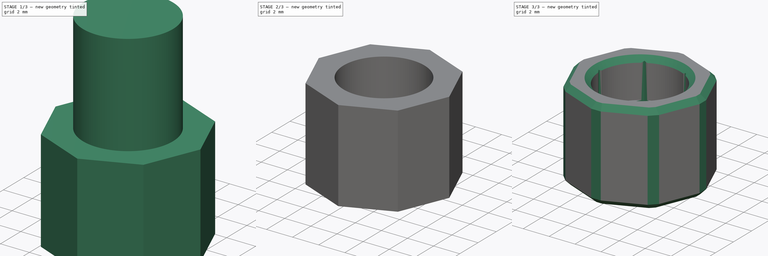
[diagram: build sequence overview — one tinted view per stage of 3, left to right]
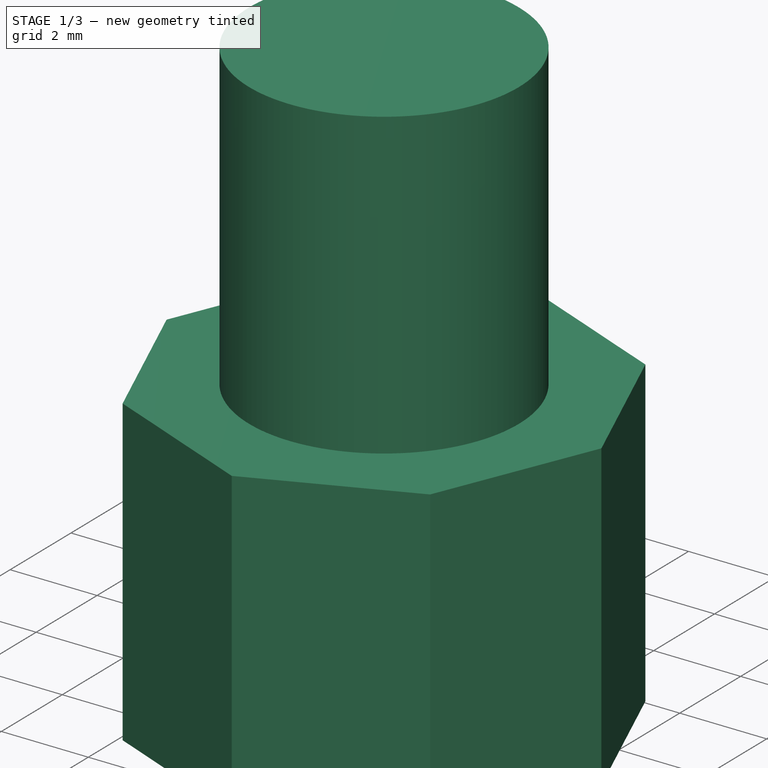
[diagram: stage 1 of 3 — iso view after this stage's code; geometry added in this stage tinted green]
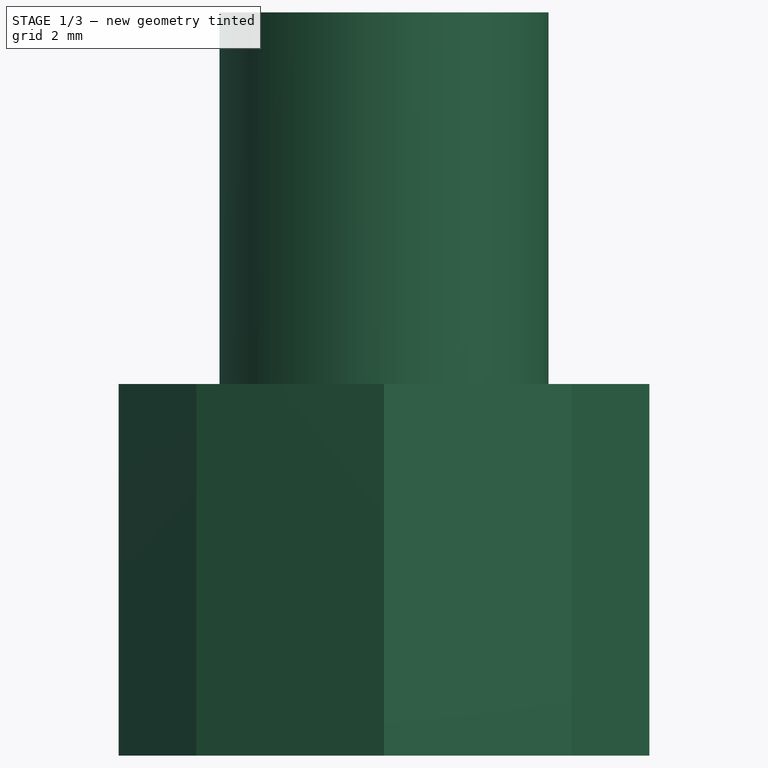
[diagram: stage 1 of 3 — front view after this stage's code; geometry added in this stage tinted green]
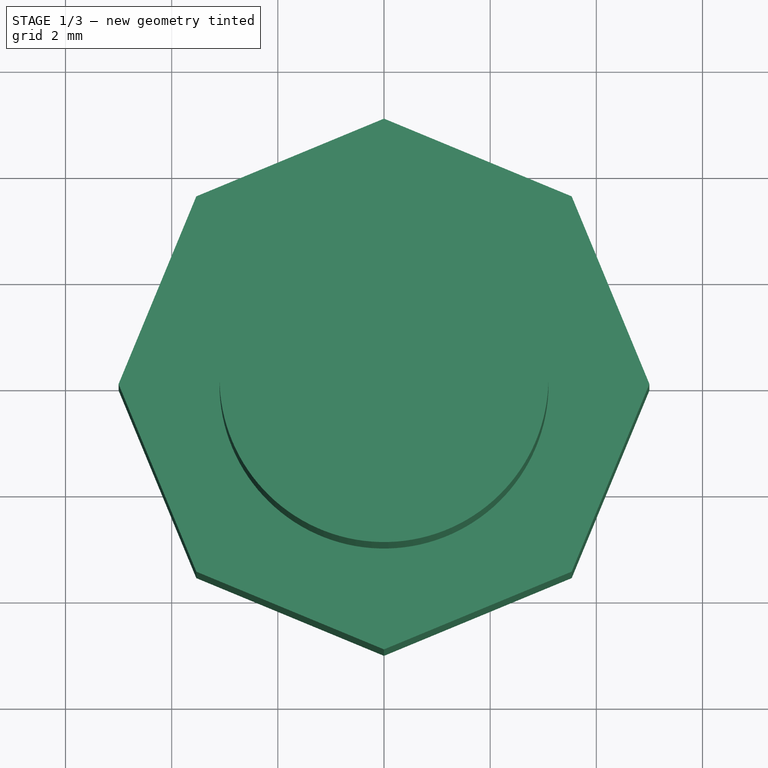
[diagram: stage 1 of 3 — top view after this stage's code; geometry added in this stage tinted green]
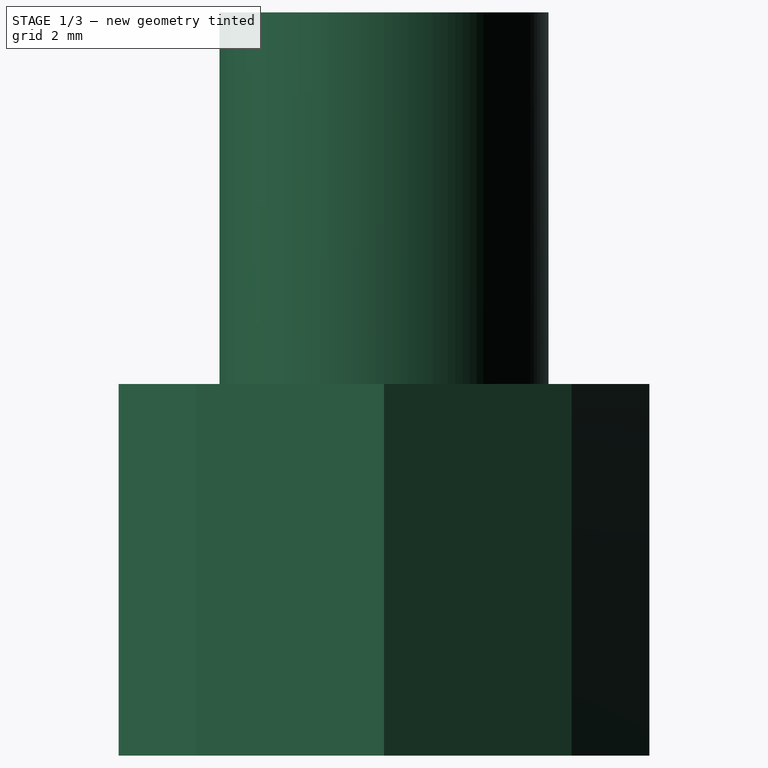
[diagram: stage 1 of 3 — right view after this stage's code; geometry added in this stage tinted green]
FCSTD DOCUMENT  (FreeCAD 0.18R16146 (Git))
Label: magnet-endstop
License: Other
LicenseURL: GPL3
objects: Part::Cut×3, Part::Feature×2, Part::Cylinder×2, Sketcher::SketchObject×1, PartDesign::Pad×1, PartDesign::Body×1, Part::Chamfer×1
note: 12 computed .brp shape members not serialized (recipe doc carries the construction recipe); baked Part::Feature solids carry a one-line shape summary decoded from their .brp

FEATURE [Part::Feature] Body001002  label="Body003"
  Placement = pos=(0,0,2) rot=(0,0,1;0rad)
  shape: bbox 6.4 x 5.543 x 10 mm, 8 faces (baked)
FEATURE [Part::Cylinder] Cylinder
  Angle = 360
  AttacherType = Attacher::AttachEngine3D
  Height = 10
  Placement = pos=(0,0,4) rot=(0,0,1;0rad)
  Radius = 3.1
FEATURE [Part::Feature] Body001003  label="Body004"
  shape: bbox 16 x 16 x 7 mm, 10 faces (baked)
FEATURE [Sketcher::SketchObject] Sketch
  MapMode = 5
  Support = -> [XY_Plane]
  sketch-geometry (9):
    g0: LineSegment StartX=5 StartY=0 StartZ=0 EndX=3.53553 EndY=3.53553 EndZ=0
    g1: LineSegment StartX=3.53553 StartY=3.53553 StartZ=0 EndX=4e-16 EndY=5 EndZ=0
    g2: LineSegment StartX=3e-16 StartY=5 StartZ=0 EndX=-3.53553 EndY=3.53553 EndZ=0
    g3: LineSegment StartX=-3.53553 StartY=3.53553 StartZ=0 EndX=-5 EndY=4e-16 EndZ=0
    g4: LineSegment StartX=-5 StartY=4e-16 StartZ=0 EndX=-3.53553 EndY=-3.53553 EndZ=0
    g5: LineSegment StartX=-3.53553 StartY=-3.53553 StartZ=0 EndX=-9e-16 EndY=-5 EndZ=0
    g6: LineSegment StartX=-9e-16 StartY=-5 StartZ=0 EndX=3.53553 EndY=-3.53553 EndZ=0
    g7: LineSegment StartX=3.53553 StartY=-3.53553 StartZ=0 EndX=5 EndY=0 EndZ=0
    g8: Circle [constr] CenterX=0 CenterY=0 CenterZ=0 NormalX=0 NormalY=0 NormalZ=1 AngleXU=0 Radius=5
  constraints (18):
    c: Coincident(g0,g1)
    c: Coincident(g1,g2)
    c: Coincident(g2,g3)
    c: Coincident(g3,g4)
    c: Coincident(g4,g5)
    c: Coincident(g5,g6)
    c: Coincident(g6,g7)
    c: Coincident(g7,g0)
    c: Equal(g0, g1-g7) x7
    c: PointOnObject(g0,g8)
    c: PointOnObject(g1,g8)
    c: PointOnObject(g2,g8)
    c: PointOnObject(g3,g8)
    c: PointOnObject(g4,g8)
    c: PointOnObject(g5,g8)
    c: PointOnObject(g6,g8)
    c: PointOnObject(g7,g8)
    c: PointOnObject(g8,g-2)
FEATURE [PartDesign::Pad] Pad
  Length = 7
  Length2 = 100
  Profile = -> Sketch
  Type = 0
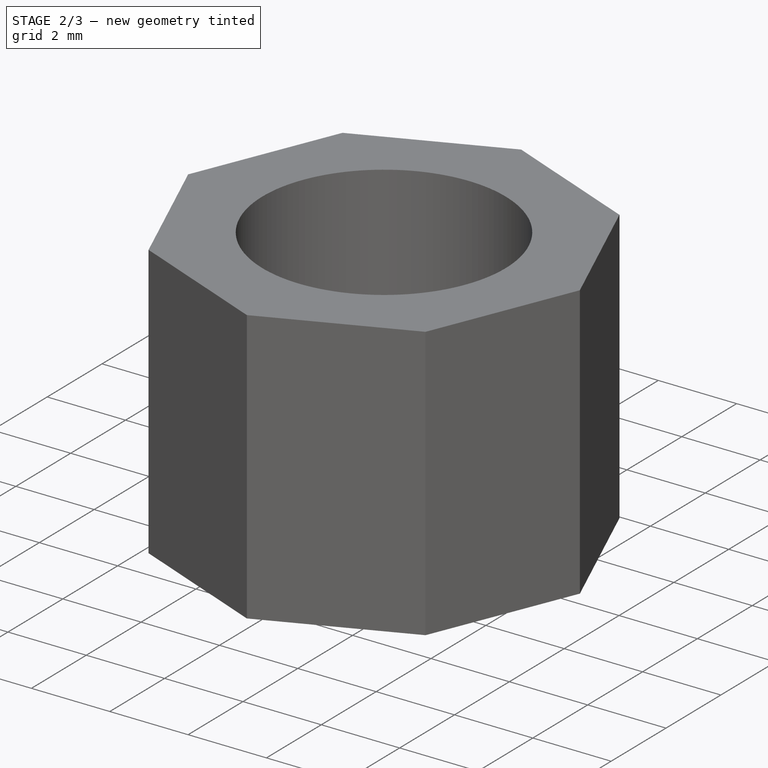
[diagram: stage 2 of 3 — iso view after this stage's code; geometry added in this stage tinted green]
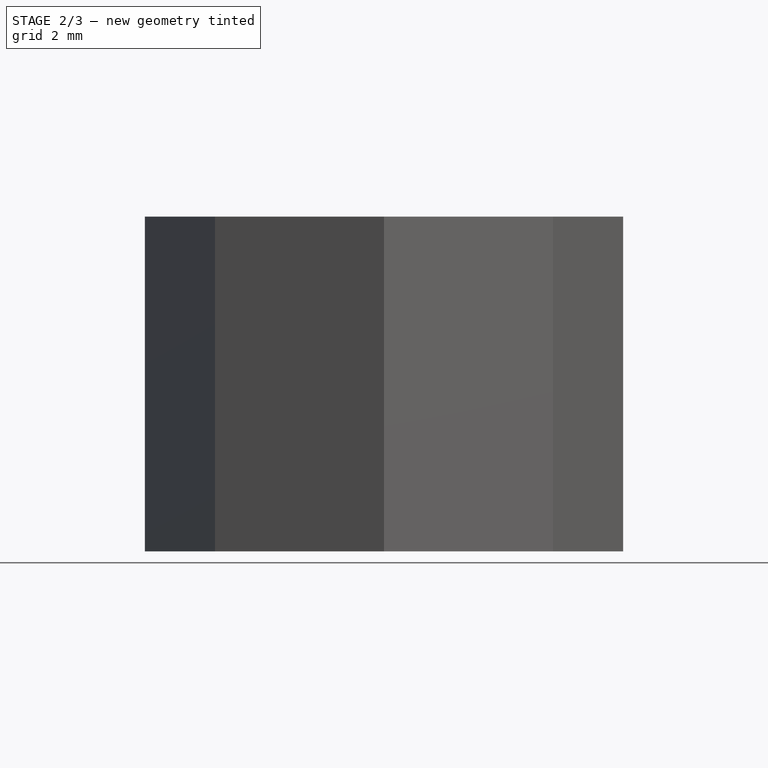
[diagram: stage 2 of 3 — front view after this stage's code; geometry added in this stage tinted green]
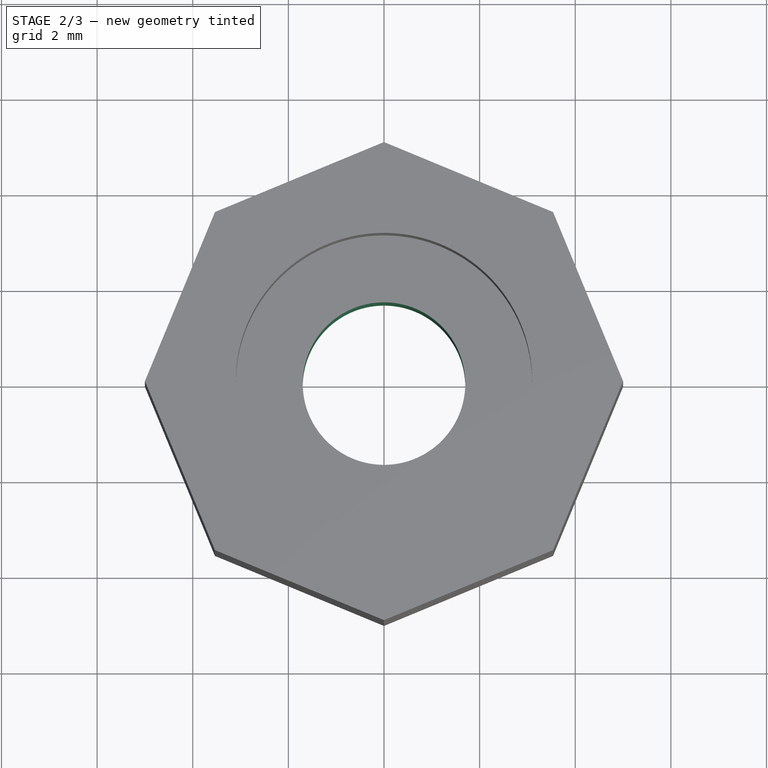
[diagram: stage 2 of 3 — top view after this stage's code; geometry added in this stage tinted green]
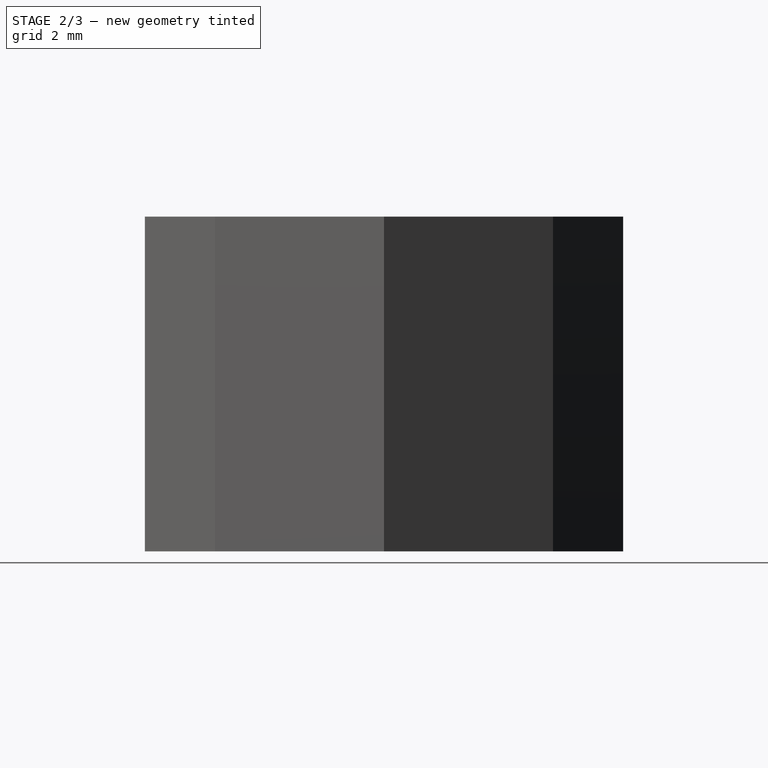
[diagram: stage 2 of 3 — right view after this stage's code; geometry added in this stage tinted green]
FEATURE [Part::Cylinder] Cylinder001
  Angle = 360
  AttacherType = Attacher::AttachEngine3D
  Height = 10
  Radius = 1.7
FEATURE [PartDesign::Body] Body
  Group = -> [Sketch,Pad]
  Origin = -> Origin
  Tip = -> Pad
FEATURE [Part::Cut] Cut
  Base = -> Pad
  Tool = -> Cylinder
FEATURE [Part::Cut] Cut001
  Base = -> Cut
  Tool = -> Cylinder001
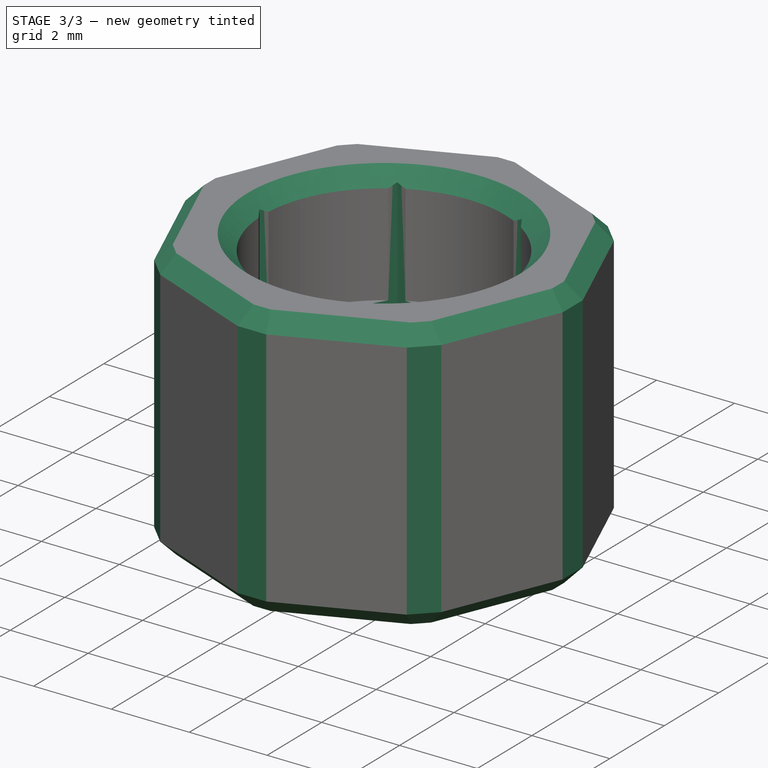
[diagram: stage 3 of 3 — iso view after this stage's code; geometry added in this stage tinted green]
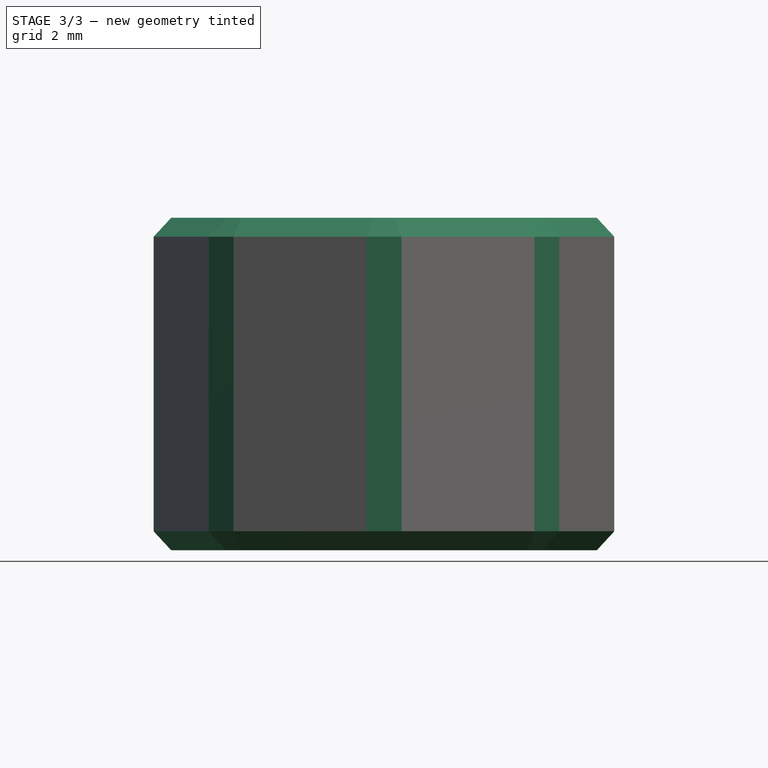
[diagram: stage 3 of 3 — front view after this stage's code; geometry added in this stage tinted green]
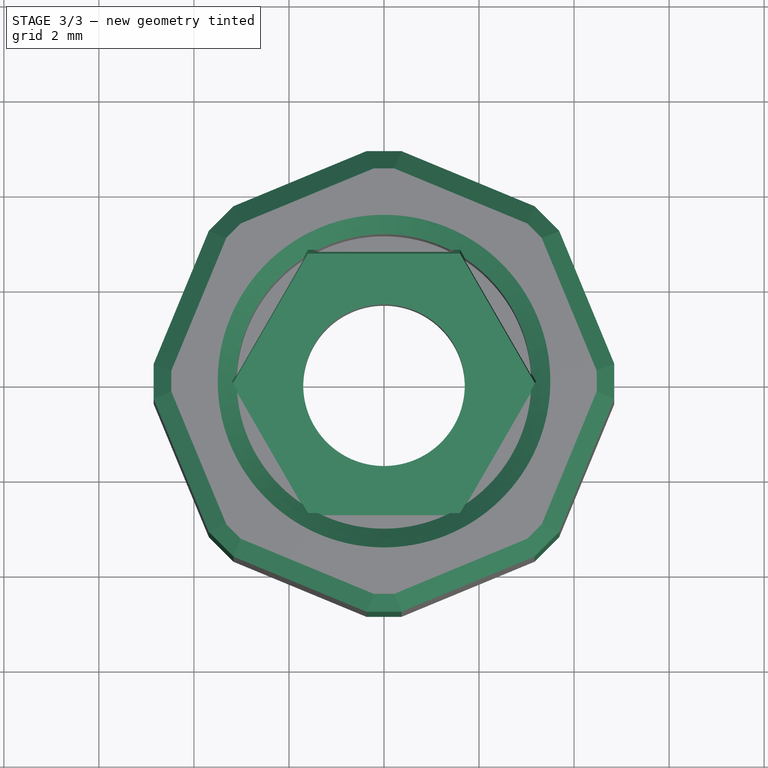
[diagram: stage 3 of 3 — top view after this stage's code; geometry added in this stage tinted green]
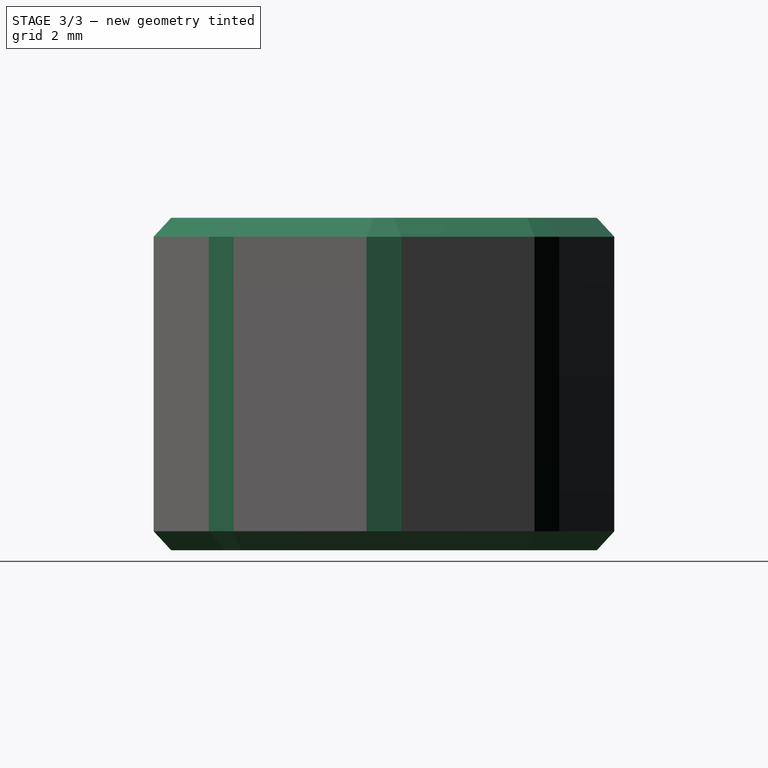
[diagram: stage 3 of 3 — right view after this stage's code; geometry added in this stage tinted green]
FEATURE [Part::Chamfer] Chamfer
  Base = -> Cut001
  Edges = 26 edges r=0.4: [Edge1,Edge2,Edge3,Edge4,Edge5,Edge6,Edge7,Edge8,Edge9,Edge10,Edge11,Edge12,Edge13,Edge14,Edge15,Edge16,Edge17,Edge18,Edge19,Edge20,Edge21,Edge22,Edge23,Edge24,Edge25,Edge26]
FEATURE [Part::Cut] Cut002
  Base = -> Chamfer
  Tool = -> Body001002
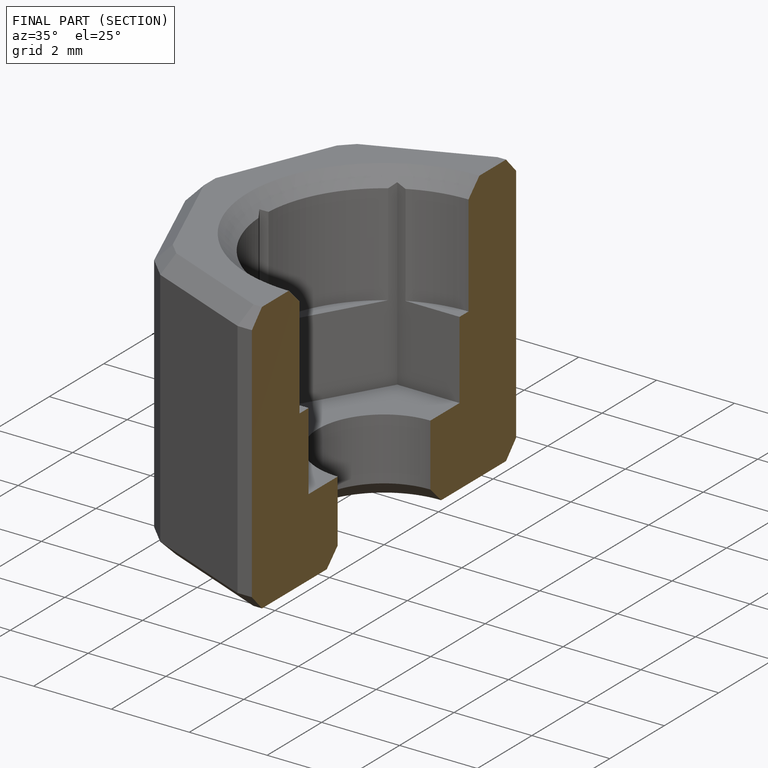
[diagram: finished part — half-section view (interior)]
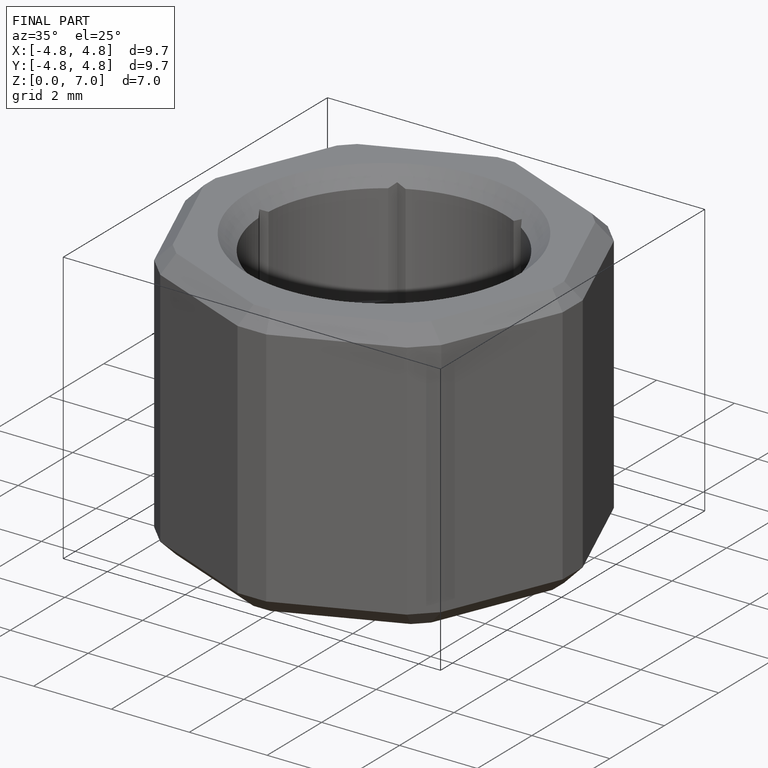
[diagram: finished part — iso view with bounding-box wireframe]
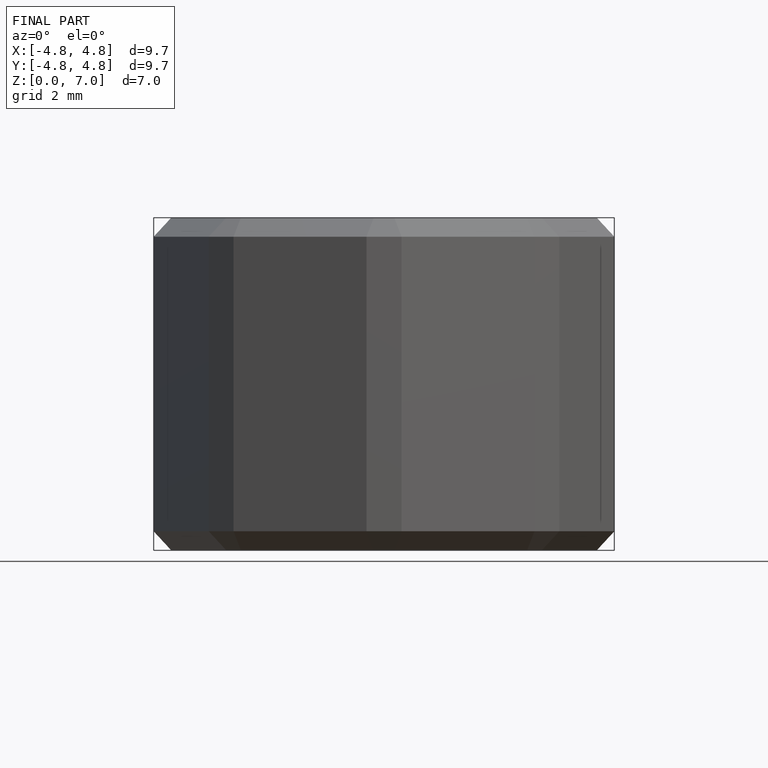
[diagram: finished part — front view with bounding-box wireframe]
